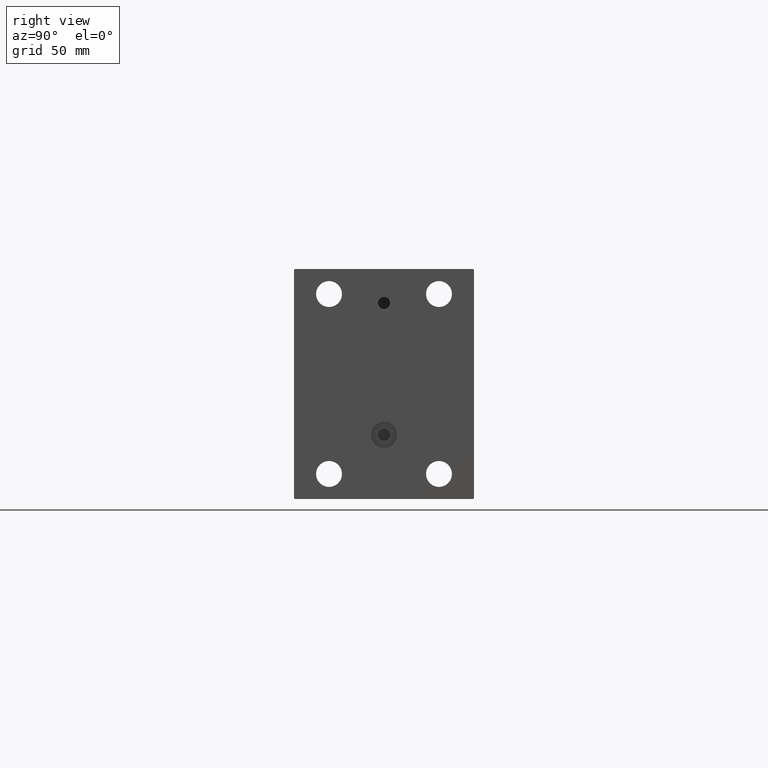
[diagram: clean part render]
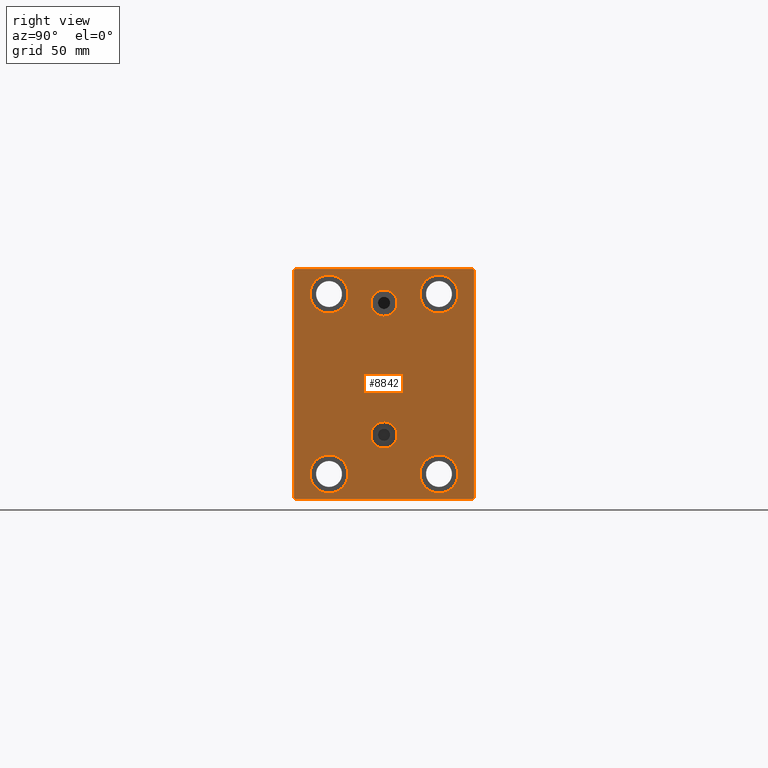
[diagram: same view with one face highlighted and labeled with its STEP entity id]
A machine part, right view. The second image highlights one B-rep face of the part: STEP entity #8842.
In plain terms, the highlighted planar face has unit normal (1, 0, 0).
Its self-contained STEP definition (entity closure, byte-faithful):
#15 = LINE ( 'NONE', #14407, #28247 ) ;
#355 = EDGE_CURVE ( 'NONE', #12082, #30908, #1444, .T. ) ;
#770 = DIRECTION ( 'NONE',  ( 0.000000000000000000, 0.000000000000000000, 1.000000000000000000 ) ) ;
#1000 = CARTESIAN_POINT ( 'NONE',  ( 238.0000000000000000, -50.99999999999874944, 51.00000000000158451 ) ) ;
#1329 = VERTEX_POINT ( 'NONE', #38912 ) ;
#1444 = LINE ( 'NONE', #1901, #43772 ) ;
#1748 = CARTESIAN_POINT ( 'NONE',  ( 238.0000000000000000, -27.49999999999998934, 45.00000000000000711 ) ) ;
#1901 = CARTESIAN_POINT ( 'NONE',  ( 238.0000000000000000, 51.00000000000003553, -51.00000000000003553 ) ) ;
#2359 = CIRCLE ( 'NONE', #9894, 9.500000000000001776 ) ;
#2439 = DIRECTION ( 'NONE',  ( 0.000000000000000000, -1.206764157201257045E-16, 1.000000000000000000 ) ) ;
#2673 = EDGE_LOOP ( 'NONE', ( #30723, #45631 ) ) ;
#3716 = CARTESIAN_POINT ( 'NONE',  ( 238.0000000000000000, 27.50000000000001066, 45.00000000000000711 ) ) ;
#3913 = AXIS2_PLACEMENT_3D ( 'NONE', #15858, #7834, #30003 ) ;
#3964 = EDGE_LOOP ( 'NONE', ( #22546, #20862 ) ) ;
#4258 = VECTOR ( 'NONE', #2439, 1000.000000000000000 ) ;
#4259 = DIRECTION ( 'NONE',  ( -1.000000000000000000, -0.000000000000000000, -0.000000000000000000 ) ) ;
#4710 = CARTESIAN_POINT ( 'NONE',  ( 238.0000000000000000, -44.50000000000005684, -57.50000000000000711 ) ) ;
#5917 = DIRECTION ( 'NONE',  ( 1.000000000000000000, 0.000000000000000000, 0.000000000000000000 ) ) ;
#6425 = DIRECTION ( 'NONE',  ( -0.000000000000000000, 0.7071067811865474617, -0.7071067811865474617 ) ) ;
#6604 = EDGE_CURVE ( 'NONE', #44796, #43867, #2359, .T. ) ;
#6836 = DIRECTION ( 'NONE',  ( 0.000000000000000000, 0.000000000000000000, 1.000000000000000000 ) ) ;
#7422 = DIRECTION ( 'NONE',  ( -0.000000000000000000, -0.7071067811865474617, 0.7071067811865474617 ) ) ;
#7834 = DIRECTION ( 'NONE',  ( 1.000000000000000000, 0.000000000000000000, -0.000000000000000000 ) ) ;
#8000 = VECTOR ( 'NONE', #45659, 1000.000000000000000 ) ;
#8452 = EDGE_CURVE ( 'NONE', #24185, #23630, #40067, .T. ) ;
#8637 = ORIENTED_EDGE ( 'NONE', *, *, #8452, .F. ) ;
#8694 = CIRCLE ( 'NONE', #39570, 9.500000000000001776 ) ;
#8786 = ORIENTED_EDGE ( 'NONE', *, *, #23517, .T. ) ;
#8842 = ADVANCED_FACE ( 'NONE', ( #13645, #39346, #10555, #42662, #24939, #45965, #46203 ), #24471, .T. ) ;
#8937 = VECTOR ( 'NONE', #6425, 1000.000000000000114 ) ;
#9478 = VERTEX_POINT ( 'NONE', #19563 ) ;
#9718 = EDGE_LOOP ( 'NONE', ( #14025, #42231, #34489, #8786, #29805, #15466, #43209, #18963 ) ) ;
#9894 = AXIS2_PLACEMENT_3D ( 'NONE', #3716, #24700, #39803 ) ;
#9958 = AXIS2_PLACEMENT_3D ( 'NONE', #21641, #38867, #28486 ) ;
#9985 = DIRECTION ( 'NONE',  ( 1.000000000000000000, 0.000000000000000000, 0.000000000000000000 ) ) ;
#10288 = DIRECTION ( 'NONE',  ( 0.000000000000000000, 0.000000000000000000, 1.000000000000000000 ) ) ;
#10437 = AXIS2_PLACEMENT_3D ( 'NONE', #14166, #43187, #6836 ) ;
#10456 = ORIENTED_EDGE ( 'NONE', *, *, #36889, .T. ) ;
#10555 = FACE_BOUND ( 'NONE', #41462, .T. ) ;
#11040 = EDGE_CURVE ( 'NONE', #1329, #35834, #24294, .T. ) ;
#11099 = DIRECTION ( 'NONE',  ( 0.000000000000000000, 0.000000000000000000, 1.000000000000000000 ) ) ;
#11568 = CARTESIAN_POINT ( 'NONE',  ( 238.0000000000000000, 44.50000000000004263, -57.50000000000000711 ) ) ;
#11836 = CARTESIAN_POINT ( 'NONE',  ( 238.0000000000000000, 27.49999999999998934, -54.49999999999998579 ) ) ;
#12082 = VERTEX_POINT ( 'NONE', #11568 ) ;
#12524 = DIRECTION ( 'NONE',  ( 0.000000000000000000, -0.7071067811865672237, -0.7071067811865279218 ) ) ;
#12661 = CARTESIAN_POINT ( 'NONE',  ( 238.0000000000000000, 44.50000000000005684, 57.50000000000000711 ) ) ;
#13463 = CARTESIAN_POINT ( 'NONE',  ( 238.0000000000000000, -27.49999999999998934, 35.50000000000000711 ) ) ;
#13645 = FACE_BOUND ( 'NONE', #2673, .T. ) ;
#13759 = CARTESIAN_POINT ( 'NONE',  ( 238.0000000000000000, 45.00000000000001421, -57.50000000000000711 ) ) ;
#14025 = ORIENTED_EDGE ( 'NONE', *, *, #16408, .T. ) ;
#14166 = CARTESIAN_POINT ( 'NONE',  ( 238.0000000000000000, 27.50000000000001066, 45.00000000000000711 ) ) ;
#14221 = EDGE_CURVE ( 'NONE', #35834, #1329, #30532, .T. ) ;
#14407 = CARTESIAN_POINT ( 'NONE',  ( 238.0000000000000000, -45.00000000000000000, 57.49999999999999289 ) ) ;
#14437 = CIRCLE ( 'NONE', #41537, 9.500000000000001776 ) ;
#14486 = ORIENTED_EDGE ( 'NONE', *, *, #32579, .T. ) ;
#14829 = EDGE_LOOP ( 'NONE', ( #27700, #36105 ) ) ;
#15466 = ORIENTED_EDGE ( 'NONE', *, *, #355, .T. ) ;
#15678 = DIRECTION ( 'NONE',  ( 0.000000000000000000, 0.000000000000000000, 1.000000000000000000 ) ) ;
#15853 = CIRCLE ( 'NONE', #39198, 9.500000000000001776 ) ;
#15858 = CARTESIAN_POINT ( 'NONE',  ( 238.0000000000000000, 3.122849337825749828E-15, -25.49999999999999645 ) ) ;
#16021 = AXIS2_PLACEMENT_3D ( 'NONE', #1748, #27197, #15678 ) ;
#16179 = VERTEX_POINT ( 'NONE', #20853 ) ;
#16190 = CIRCLE ( 'NONE', #18440, 9.500000000000001776 ) ;
#16337 = CARTESIAN_POINT ( 'NONE',  ( 238.0000000000000000, -5.306417150674643778E-15, 40.50000000000000711 ) ) ;
#16408 = EDGE_CURVE ( 'NONE', #33240, #34275, #34565, .T. ) ;
#16629 = EDGE_LOOP ( 'NONE', ( #10456, #27245 ) ) ;
#17199 = DIRECTION ( 'NONE',  ( -1.000000000000000000, -0.000000000000000000, -0.000000000000000000 ) ) ;
#17696 = EDGE_CURVE ( 'NONE', #30908, #9478, #34749, .T. ) ;
#17705 = CIRCLE ( 'NONE', #32774, 9.500000000000001776 ) ;
#17909 = EDGE_CURVE ( 'NONE', #23630, #24185, #22340, .T. ) ;
#17927 = EDGE_LOOP ( 'NONE', ( #8637, #33480 ) ) ;
#18294 = CARTESIAN_POINT ( 'NONE',  ( 238.0000000000000000, -27.50000000000000000, -54.49999999999998579 ) ) ;
#18440 = AXIS2_PLACEMENT_3D ( 'NONE', #21754, #29542, #770 ) ;
#18609 = CARTESIAN_POINT ( 'NONE',  ( 238.0000000000000000, -44.49999999999994316, 57.49999999999999289 ) ) ;
#18963 = ORIENTED_EDGE ( 'NONE', *, *, #20951, .T. ) ;
#19491 = DIRECTION ( 'NONE',  ( 0.000000000000000000, 1.000000000000000000, 0.000000000000000000 ) ) ;
#19563 = CARTESIAN_POINT ( 'NONE',  ( 238.0000000000000000, 45.00000000000000000, 57.00000000000003553 ) ) ;
#19748 = CIRCLE ( 'NONE', #16021, 9.500000000000001776 ) ;
#20013 = CARTESIAN_POINT ( 'NONE',  ( 238.0000000000000000, -45.00000000000000000, 56.99999999999999289 ) ) ;
#20516 = VERTEX_POINT ( 'NONE', #20013 ) ;
#20581 = LINE ( 'NONE', #24348, #8937 ) ;
#20853 = CARTESIAN_POINT ( 'NONE',  ( 238.0000000000000000, -27.50000000000000000, -35.49999999999998579 ) ) ;
#20862 = ORIENTED_EDGE ( 'NONE', *, *, #30705, .T. ) ;
#20951 = EDGE_CURVE ( 'NONE', #9478, #33240, #39741, .T. ) ;
#21376 = CARTESIAN_POINT ( 'NONE',  ( 238.0000000000000000, -27.50000000000000000, -44.99999999999998579 ) ) ;
#21557 = CARTESIAN_POINT ( 'NONE',  ( 238.0000000000000000, -4.500599556835684736E-15, 47.08000000000001251 ) ) ;
#21641 = CARTESIAN_POINT ( 'NONE',  ( 238.0000000000000000, 0.000000000000000000, 0.000000000000000000 ) ) ;
#21658 = VECTOR ( 'NONE', #7422, 1000.000000000000114 ) ;
#21754 = CARTESIAN_POINT ( 'NONE',  ( 238.0000000000000000, -27.50000000000000000, -44.99999999999998579 ) ) ;
#22239 = AXIS2_PLACEMENT_3D ( 'NONE', #27451, #9985, #38295 ) ;
#22340 = CIRCLE ( 'NONE', #29108, 6.580000000000002736 ) ;
#22546 = ORIENTED_EDGE ( 'NONE', *, *, #42323, .T. ) ;
#23241 = CARTESIAN_POINT ( 'NONE',  ( 238.0000000000000000, 45.00000000000001421, -57.00000000000006395 ) ) ;
#23517 = EDGE_CURVE ( 'NONE', #30494, #38720, #20581, .T. ) ;
#23630 = VERTEX_POINT ( 'NONE', #25992 ) ;
#23730 = EDGE_CURVE ( 'NONE', #34275, #20516, #26918, .T. ) ;
#23831 = CARTESIAN_POINT ( 'NONE',  ( 238.0000000000000000, 3.122849337825749828E-15, -25.49999999999999645 ) ) ;
#23919 = VERTEX_POINT ( 'NONE', #13463 ) ;
#24016 = DIRECTION ( 'NONE',  ( 0.000000000000000000, 0.000000000000000000, 1.000000000000000000 ) ) ;
#24076 = EDGE_CURVE ( 'NONE', #43867, #44796, #38323, .T. ) ;
#24185 = VERTEX_POINT ( 'NONE', #26397 ) ;
#24294 = CIRCLE ( 'NONE', #42405, 6.580000000000002736 ) ;
#24348 = CARTESIAN_POINT ( 'NONE',  ( 238.0000000000000000, -51.00000000000002842, -51.00000000000002842 ) ) ;
#24471 = PLANE ( 'NONE',  #9958 ) ;
#24700 = DIRECTION ( 'NONE',  ( -1.000000000000000000, -0.000000000000000000, -0.000000000000000000 ) ) ;
#24939 = FACE_BOUND ( 'NONE', #14829, .T. ) ;
#25246 = CARTESIAN_POINT ( 'NONE',  ( 238.0000000000000000, -27.49999999999998934, 45.00000000000000711 ) ) ;
#25915 = DIRECTION ( 'NONE',  ( 0.000000000000000000, 0.000000000000000000, 1.000000000000000000 ) ) ;
#25992 = CARTESIAN_POINT ( 'NONE',  ( 238.0000000000000000, 3.928666931664708475E-15, -18.91999999999999105 ) ) ;
#26397 = CARTESIAN_POINT ( 'NONE',  ( 238.0000000000000000, 3.122849337825749828E-15, -32.07999999999999829 ) ) ;
#26918 = LINE ( 'NONE', #1000, #43607 ) ;
#26943 = ORIENTED_EDGE ( 'NONE', *, *, #43832, .T. ) ;
#27141 = EDGE_CURVE ( 'NONE', #38720, #12082, #34109, .T. ) ;
#27197 = DIRECTION ( 'NONE',  ( -1.000000000000000000, -0.000000000000000000, -0.000000000000000000 ) ) ;
#27245 = ORIENTED_EDGE ( 'NONE', *, *, #44754, .T. ) ;
#27320 = CARTESIAN_POINT ( 'NONE',  ( 238.0000000000000000, 27.49999999999998934, -35.49999999999998579 ) ) ;
#27451 = CARTESIAN_POINT ( 'NONE',  ( 238.0000000000000000, -5.306417150674643778E-15, 40.50000000000000711 ) ) ;
#27479 = CARTESIAN_POINT ( 'NONE',  ( 238.0000000000000000, -45.00000000000000000, -57.50000000000000711 ) ) ;
#27521 = DIRECTION ( 'NONE',  ( -1.000000000000000000, -0.000000000000000000, -0.000000000000000000 ) ) ;
#27700 = ORIENTED_EDGE ( 'NONE', *, *, #24076, .T. ) ;
#28247 = VECTOR ( 'NONE', #38461, 1000.000000000000000 ) ;
#28486 = DIRECTION ( 'NONE',  ( 0.000000000000000000, 0.000000000000000000, -1.000000000000000000 ) ) ;
#29108 = AXIS2_PLACEMENT_3D ( 'NONE', #23831, #38227, #31626 ) ;
#29542 = DIRECTION ( 'NONE',  ( -1.000000000000000000, -0.000000000000000000, -0.000000000000000000 ) ) ;
#29695 = CARTESIAN_POINT ( 'NONE',  ( 238.0000000000000000, 27.49999999999998934, -44.99999999999998579 ) ) ;
#29805 = ORIENTED_EDGE ( 'NONE', *, *, #27141, .T. ) ;
#30003 = DIRECTION ( 'NONE',  ( 0.000000000000000000, 0.000000000000000000, 1.000000000000000000 ) ) ;
#30483 = DIRECTION ( 'NONE',  ( 0.000000000000000000, 0.000000000000000000, -1.000000000000000000 ) ) ;
#30494 = VERTEX_POINT ( 'NONE', #45128 ) ;
#30532 = CIRCLE ( 'NONE', #22239, 6.580000000000002736 ) ;
#30705 = EDGE_CURVE ( 'NONE', #16179, #37896, #14437, .T. ) ;
#30723 = ORIENTED_EDGE ( 'NONE', *, *, #11040, .F. ) ;
#30908 = VERTEX_POINT ( 'NONE', #23241 ) ;
#31626 = DIRECTION ( 'NONE',  ( 0.000000000000000000, 0.000000000000000000, 1.000000000000000000 ) ) ;
#32579 = EDGE_CURVE ( 'NONE', #42388, #41505, #15853, .T. ) ;
#32774 = AXIS2_PLACEMENT_3D ( 'NONE', #41961, #17199, #24016 ) ;
#33240 = VERTEX_POINT ( 'NONE', #12661 ) ;
#33480 = ORIENTED_EDGE ( 'NONE', *, *, #17909, .F. ) ;
#34109 = LINE ( 'NONE', #27479, #45982 ) ;
#34275 = VERTEX_POINT ( 'NONE', #18609 ) ;
#34489 = ORIENTED_EDGE ( 'NONE', *, *, #43369, .T. ) ;
#34565 = LINE ( 'NONE', #38790, #8000 ) ;
#34749 = LINE ( 'NONE', #13759, #4258 ) ;
#35834 = VERTEX_POINT ( 'NONE', #21557 ) ;
#36105 = ORIENTED_EDGE ( 'NONE', *, *, #6604, .T. ) ;
#36889 = EDGE_CURVE ( 'NONE', #23919, #37843, #19748, .T. ) ;
#37280 = DIRECTION ( 'NONE',  ( -0.000000000000000000, 0.7071067811865474617, 0.7071067811865474617 ) ) ;
#37533 = CARTESIAN_POINT ( 'NONE',  ( 238.0000000000000000, 51.00000000000002842, 51.00000000000002842 ) ) ;
#37843 = VERTEX_POINT ( 'NONE', #45444 ) ;
#37896 = VERTEX_POINT ( 'NONE', #18294 ) ;
#38227 = DIRECTION ( 'NONE',  ( 1.000000000000000000, 0.000000000000000000, -0.000000000000000000 ) ) ;
#38295 = DIRECTION ( 'NONE',  ( 0.000000000000000000, 0.000000000000000000, -1.000000000000000000 ) ) ;
#38323 = CIRCLE ( 'NONE', #10437, 9.500000000000001776 ) ;
#38461 = DIRECTION ( 'NONE',  ( 0.000000000000000000, 0.000000000000000000, -1.000000000000000000 ) ) ;
#38720 = VERTEX_POINT ( 'NONE', #4710 ) ;
#38790 = CARTESIAN_POINT ( 'NONE',  ( 238.0000000000000000, 45.00000000000000000, 57.50000000000000711 ) ) ;
#38867 = DIRECTION ( 'NONE',  ( 1.000000000000000000, 0.000000000000000000, 0.000000000000000000 ) ) ;
#38912 = CARTESIAN_POINT ( 'NONE',  ( 238.0000000000000000, -5.306417150674643778E-15, 33.92000000000000881 ) ) ;
#39198 = AXIS2_PLACEMENT_3D ( 'NONE', #29695, #44099, #25915 ) ;
#39346 = FACE_BOUND ( 'NONE', #17927, .T. ) ;
#39570 = AXIS2_PLACEMENT_3D ( 'NONE', #25246, #4259, #11099 ) ;
#39584 = CARTESIAN_POINT ( 'NONE',  ( 238.0000000000000000, 27.50000000000001066, 35.50000000000000711 ) ) ;
#39741 = LINE ( 'NONE', #37533, #21658 ) ;
#39803 = DIRECTION ( 'NONE',  ( 0.000000000000000000, 0.000000000000000000, 1.000000000000000000 ) ) ;
#39880 = CARTESIAN_POINT ( 'NONE',  ( 238.0000000000000000, 27.50000000000001066, 54.50000000000000711 ) ) ;
#40067 = CIRCLE ( 'NONE', #3913, 6.580000000000002736 ) ;
#41462 = EDGE_LOOP ( 'NONE', ( #14486, #26943 ) ) ;
#41505 = VERTEX_POINT ( 'NONE', #27320 ) ;
#41537 = AXIS2_PLACEMENT_3D ( 'NONE', #21376, #27521, #10288 ) ;
#41961 = CARTESIAN_POINT ( 'NONE',  ( 238.0000000000000000, 27.49999999999998934, -44.99999999999998579 ) ) ;
#42231 = ORIENTED_EDGE ( 'NONE', *, *, #23730, .T. ) ;
#42323 = EDGE_CURVE ( 'NONE', #37896, #16179, #16190, .T. ) ;
#42388 = VERTEX_POINT ( 'NONE', #11836 ) ;
#42405 = AXIS2_PLACEMENT_3D ( 'NONE', #16337, #5917, #30483 ) ;
#42662 = FACE_BOUND ( 'NONE', #16629, .T. ) ;
#43187 = DIRECTION ( 'NONE',  ( -1.000000000000000000, -0.000000000000000000, -0.000000000000000000 ) ) ;
#43209 = ORIENTED_EDGE ( 'NONE', *, *, #17696, .T. ) ;
#43369 = EDGE_CURVE ( 'NONE', #20516, #30494, #15, .T. ) ;
#43607 = VECTOR ( 'NONE', #12524, 1000.000000000000000 ) ;
#43772 = VECTOR ( 'NONE', #37280, 1000.000000000000114 ) ;
#43832 = EDGE_CURVE ( 'NONE', #41505, #42388, #17705, .T. ) ;
#43867 = VERTEX_POINT ( 'NONE', #39584 ) ;
#44099 = DIRECTION ( 'NONE',  ( -1.000000000000000000, -0.000000000000000000, -0.000000000000000000 ) ) ;
#44754 = EDGE_CURVE ( 'NONE', #37843, #23919, #8694, .T. ) ;
#44796 = VERTEX_POINT ( 'NONE', #39880 ) ;
#45128 = CARTESIAN_POINT ( 'NONE',  ( 238.0000000000000000, -45.00000000000000000, -57.00000000000006395 ) ) ;
#45444 = CARTESIAN_POINT ( 'NONE',  ( 238.0000000000000000, -27.49999999999998934, 54.50000000000000711 ) ) ;
#45631 = ORIENTED_EDGE ( 'NONE', *, *, #14221, .F. ) ;
#45659 = DIRECTION ( 'NONE',  ( 0.000000000000000000, -1.000000000000000000, -1.541976423090495387E-16 ) ) ;
#45965 = FACE_BOUND ( 'NONE', #3964, .T. ) ;
#45982 = VECTOR ( 'NONE', #19491, 1000.000000000000000 ) ;
#46203 = FACE_OUTER_BOUND ( 'NONE', #9718, .T. ) ;